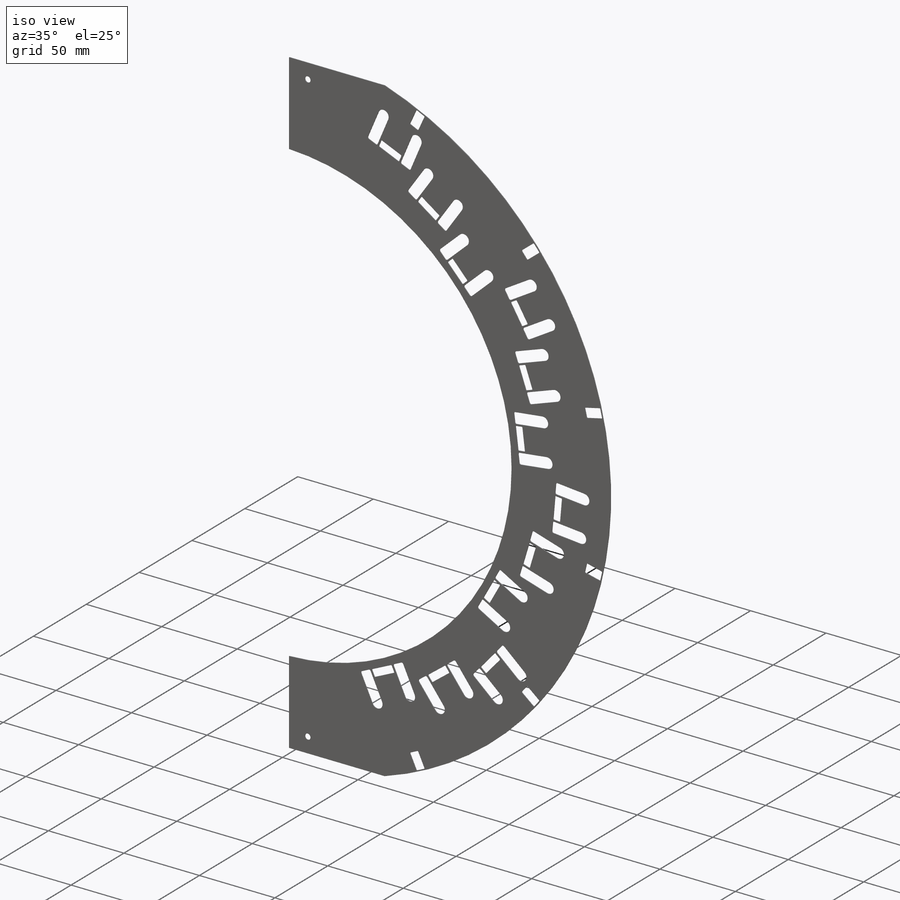
[diagram: iso view]
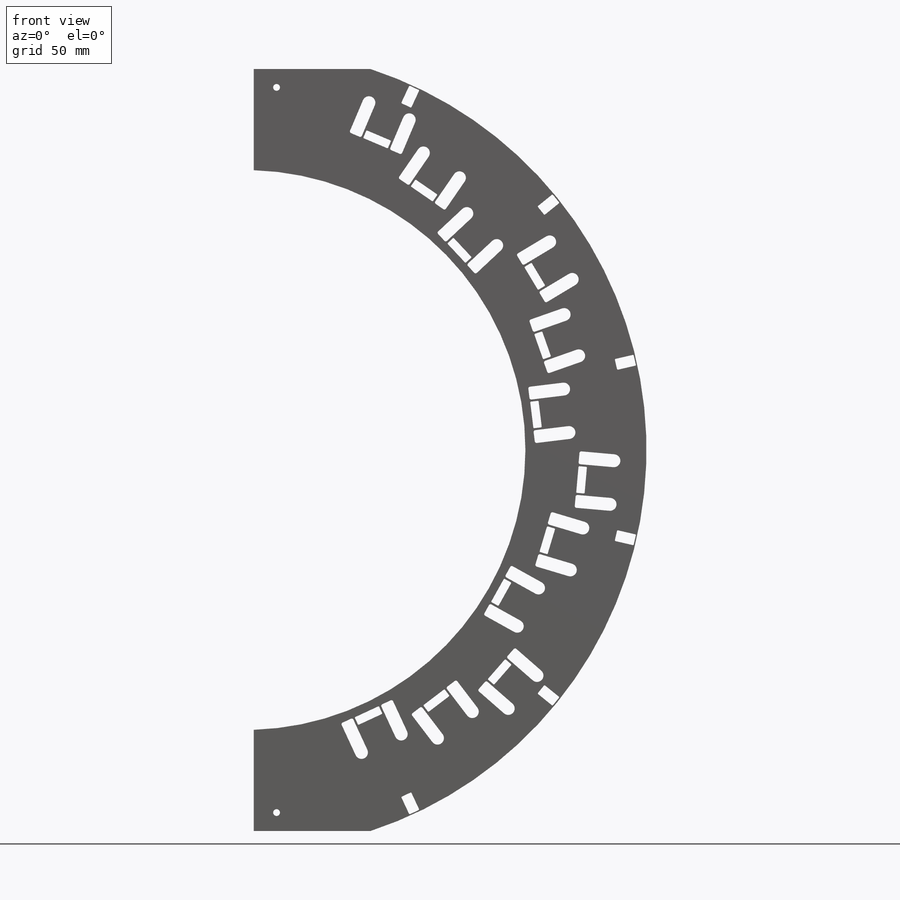
[diagram: front view]
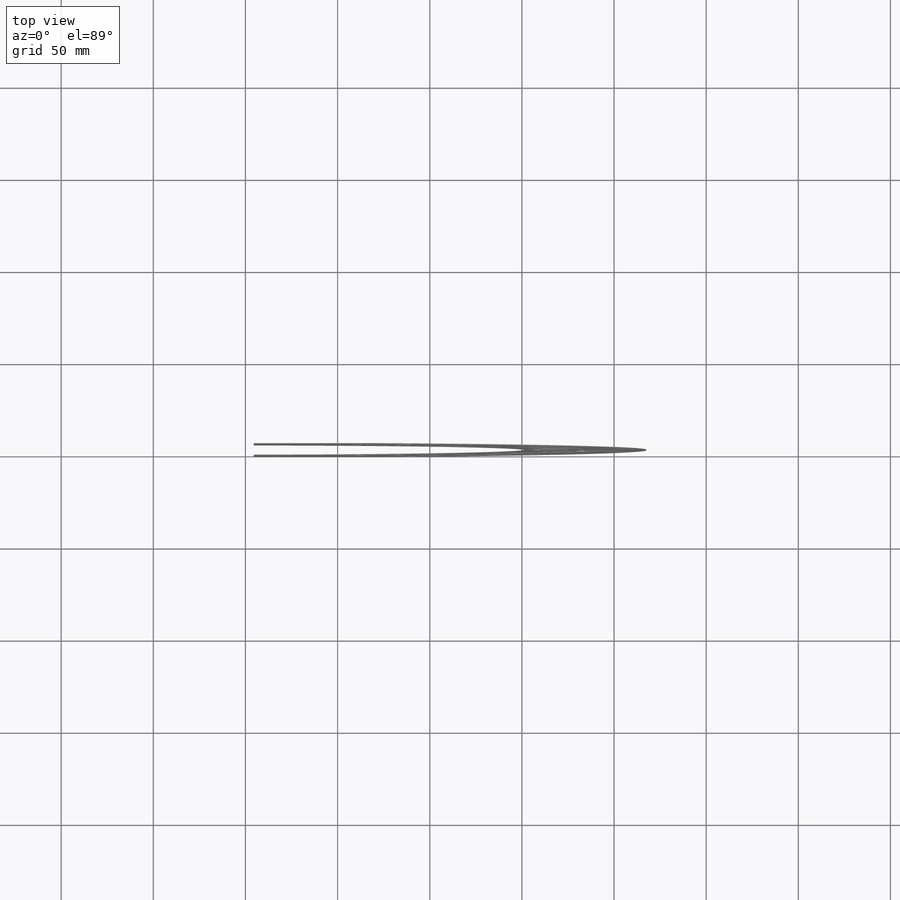
[diagram: top view]
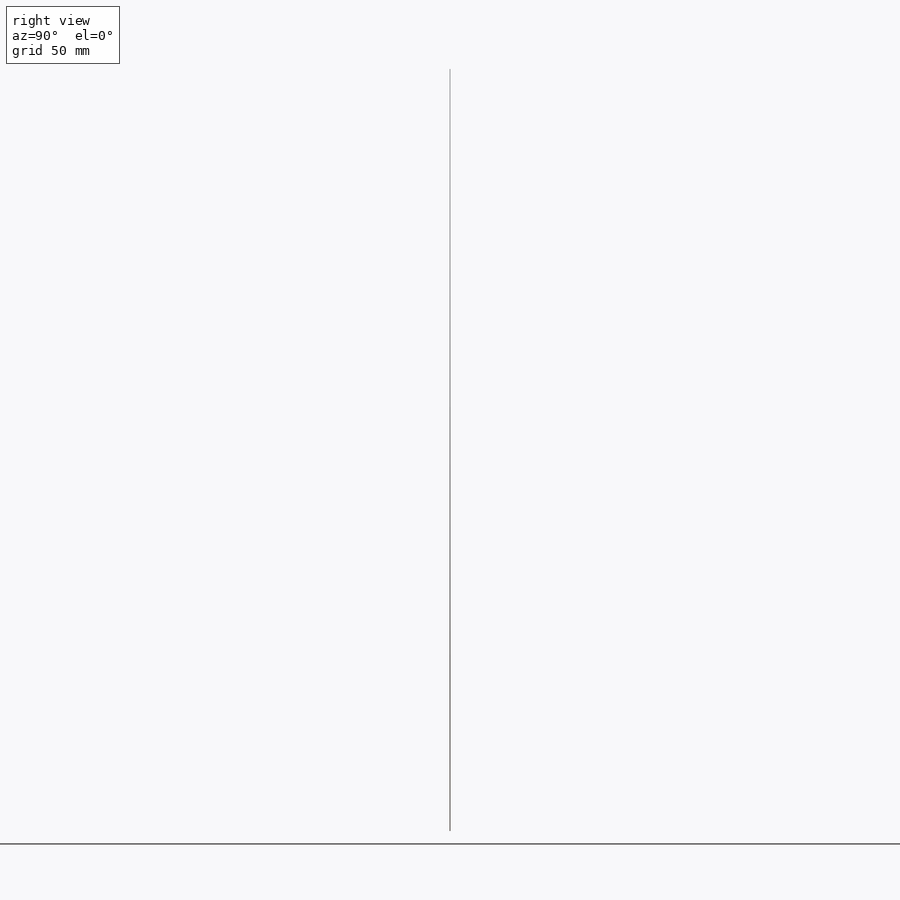
[diagram: right view]
SOLIDWORKS PART (.sldprt)
format: sldprt  version: not decoded by parser v0  size: 3,280,384 bytes
history: native  units: mm
features: sketch x10, cut_extrude x8, pattern_circular x5, plane x3, extrude x2, material x1 + 2 further entries (+12 scaffold rows collapsed)
feature tree (43):
  scaffold x12  (default folders/planes/origin — collapsed)
  material  "Material <not specified>"
  plane  "Plane1"
  plane  "Plane2"
  plane  "Plane3"
  "Axis2"
  "Axis3"
  sketch  "Sketch1"  dims[c1.D1=~217.595316mm c1.D2=3.0mm c1.D3=20.0mm c1.D8=~151.894431mm c1.D6=3.0mm c2.D3=148.0mm c2.D4=12.0mm c2.D5=416.0mm c3.D4=~30.959689mm c4.D4=10.0deg c4.D6=~28.144483mm c5.D6=8.0deg c5.D7=152.4mm c5.D8=~147.440921mm c6.D8=~68.880109deg c6.D9=~71.329219mm c6.D7=290.0mm c7.D9=4.5mm c7.D3=~31.981474mm c8.D3=80.0deg c8.D5=208.0mm c8.D6=20.0mm c8.D4=20.0mm c8.D2=110.0mm c9.D2=16.5deg]
  extrude  "Extrude1"  Depth=0.41mm
  sketch  "Sketch3"  dims[c1.D2=210.5mm c1.D3=2.0mm c1.D1=~12.839455mm c2.D1=8.0deg c3.D1=210.5mm c4.D1=8.0deg c5.D1=0.4807mm c6.D1=9.0deg c6.D4=210.5mm c6.D2=206.75mm c7.D4=0.4807mm c8.D4=~3.865784deg]
  cut_extrude  "Extrude3"  [1 undecoded]
  sketch  "Sketch7"  dims[c1.D6=0.5mm c1.D1=6.0mm c1.D2=10.5mm c1.D3=2.5mm c1.D4=214.063mm c1.D5=0.4807mm c2.D5=25.0deg]
  cut_extrude  "Cut-Extrude2"  [1 undecoded]
  pattern_circular  "CirPattern2"  Count=6 Angle=26deg
  sketch  "Sketch12"  dims[c1.D3=0.5mm c1.D1=14.5mm c1.D2=4.584mm c1.D4=23.0mm c1.D5=~151.98391mm c1.D6=~163.786743mm c1.D7=~175.543752mm c1.D8=~19.057175mm c2.D8=~11.133864deg c2.D9=~18.96564mm c3.D9=~11.981345deg c3.D10=0.4807mm c4.D10=~22.968307deg c4.D4=183.0875mm c4.D5=~170.946207mm c4.D6=~158.808528mm c4.D7=0.451mm c5.D7=~46.982438deg c5.D8=0.451mm c6.D8=~34.539868deg]
  cut_extrude  "Stave Mount Hole Extrude5"  [1 undecoded]
  sketch  "Sketch15"  dims[c1.D3=5.0mm c1.D6=5.0mm c1.D7=1.0mm c1.D8=5.0mm c1.D9=1.0mm c1.D17=1.5mm c1.D14=5.0mm c1.D18=5.0mm c1.D19=1.0mm c2.D6=1.0mm c2.D1=7.0mm c2.D2=0.4807mm c3.D2=~27.373507deg c3.D3=~163.223717mm c3.D4=0.4807mm c4.D4=~39.354852deg c4.D5=~175.02655mm c4.D6=12.0mm c4.D8=12.0mm c4.D10=0.4807mm c5.D10=~50.488716deg c5.D11=~186.783559mm c5.D12=32.0mm c5.D13=0.5mm c5.D14=~200.738045mm c5.D15=~200.738045mm c5.D16=~200.738045mm c6.D14=~15.954486mm c6.D15=~20.954486mm c6.D16=~20.954486mm c6.D18=19.0mm c6.D3=23.75mm c6.D7=~163.223717mm c6.D5=~175.02655mm c6.D8=~186.783559mm c6.D2=2.425mm c6.D4=2.425mm c7.D5=2.425mm c7.D7=~0.317387mm]
  cut_extrude  "Mouse Hole Extrude7"  [1 undecoded]
  pattern_circular  "Stave Mount Hole CirPattern3"  Count=4 Angle=36.052526deg
  sketch  "Sketch13"  dims[D1=4.7mm D2=5.55mm D3=5.55mm D4=32.0mm D5=3.0mm]
  cut_extrude  "Cable Slot Extrude6"  [1 undecoded]
  pattern_circular  "Cable Slot CirPattern4"  Count=4 Angle=36.052526deg
  pattern_circular  "Mouse Hole CirPattern5"  Count=4 Angle=36.052526deg
  sketch  "Sketch14"  dims[c1.D2=3.5mm c1.D3=3.7mm c1.D1=196.75mm c2.D2=~16.866247mm]
  cut_extrude  "Cut-Extrude5"  Depth=1mm
  sketch  "Sketch16"
  extrude  "Extrude4"  [1 undecoded]
  sketch  "Sketch17"  dims[c1.D8=4.3mm c1.D9=2.75mm c1.D10=4.3mm c1.D11=4.3mm c1.D1=214.063mm c2.D1=25.0deg c2.D2=214.063mm c3.D2=26.0deg c3.D3=214.063mm c4.D3=26.0deg c4.D4=~208.576579mm c5.D4=26.0deg c5.D5=~208.576579mm c6.D5=26.0deg c6.D6=214.063mm c7.D6=26.0deg c7.D7=214.063mm c7.D10=5.0mm c7.D11=5.0mm c7.D1=0.3mm c7.D2=0.3mm c7.D3=0.3mm c7.D4=0.3mm c7.D5=0.3mm c8.D6=0.3mm c8.D7=0.3mm c8.D8=0.3mm]
  cut_extrude  "Cut-Extrude6"  [1 undecoded]
  sketch  "Sketch18"  dims[c1.D2=2.75mm c1.D1=3.5mm c1.D3=3.1mm c1.D4=3.1mm c2.D3=10.0mm c2.D1=0.3mm]
  cut_extrude  "Cut-Extrude7"  [1 undecoded]
  pattern_circular  "CirPattern3"  Count=4 Angle=36.052526deg
decode coverage: 16 of 25 modeling features carry decoded parameters; 2 rows unclassified (native names shown)
note: ~ marks probable driven/reference dimensions
note: 8 parameter values undecoded
summary: no parameter record found for 8 features
note: suppression state not decoded; provenance and decode notes live in map.json
